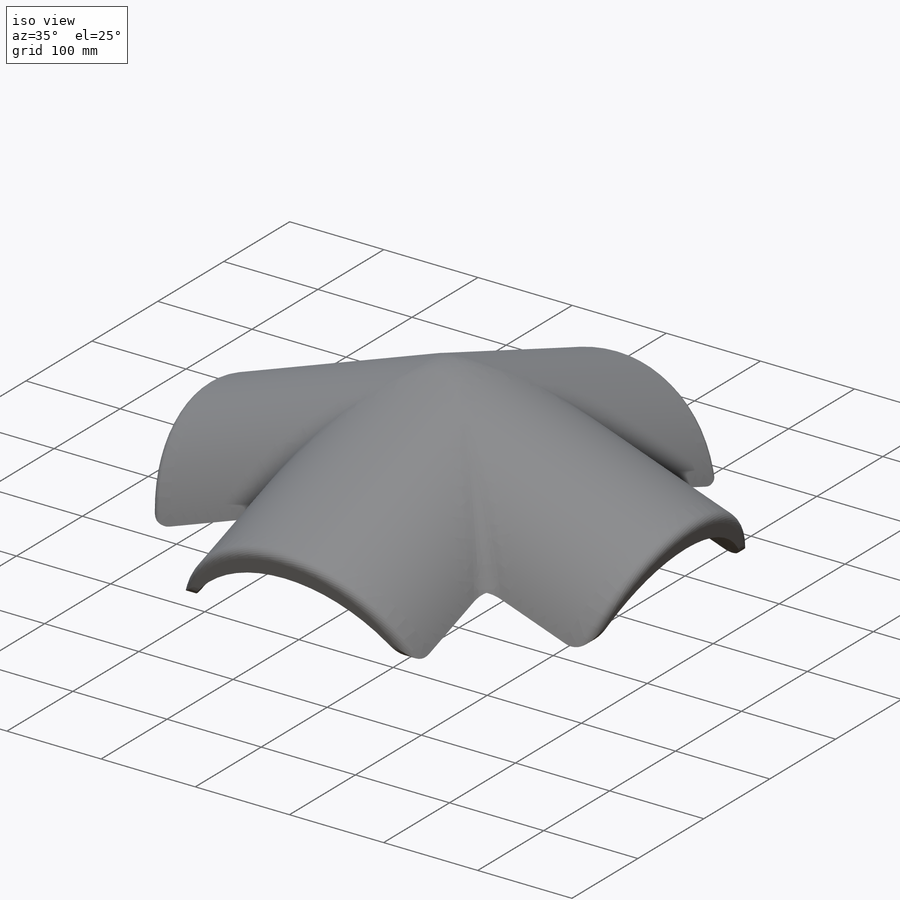
[diagram: iso view]
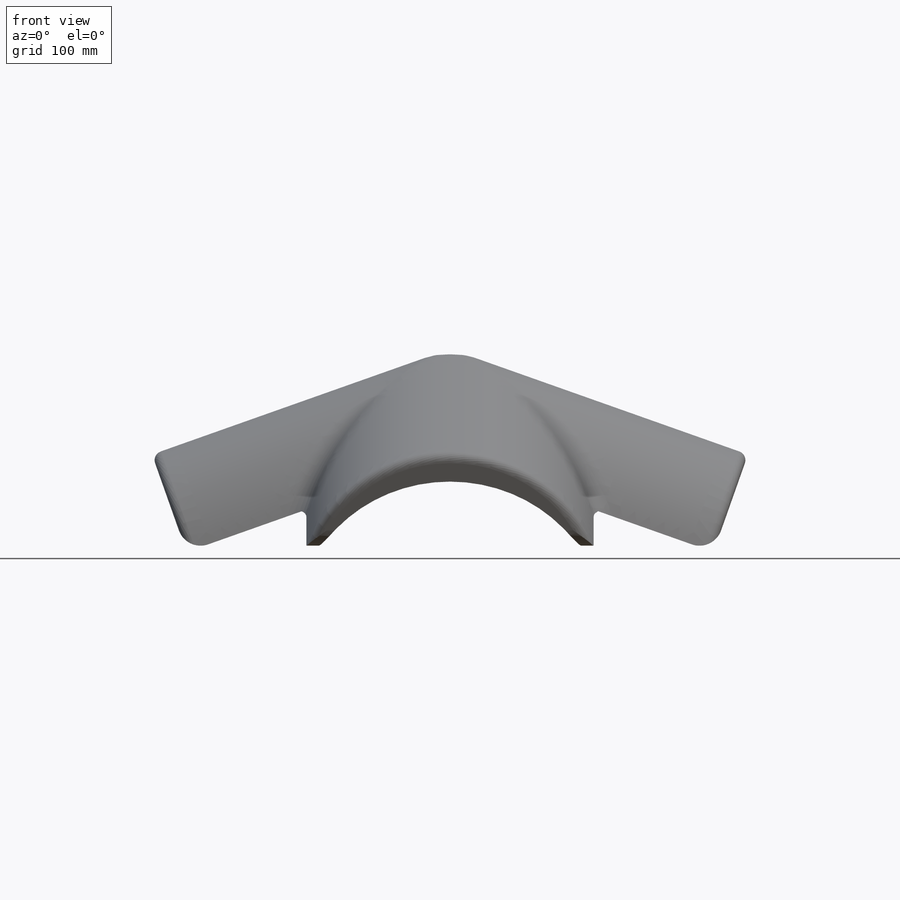
[diagram: front view]
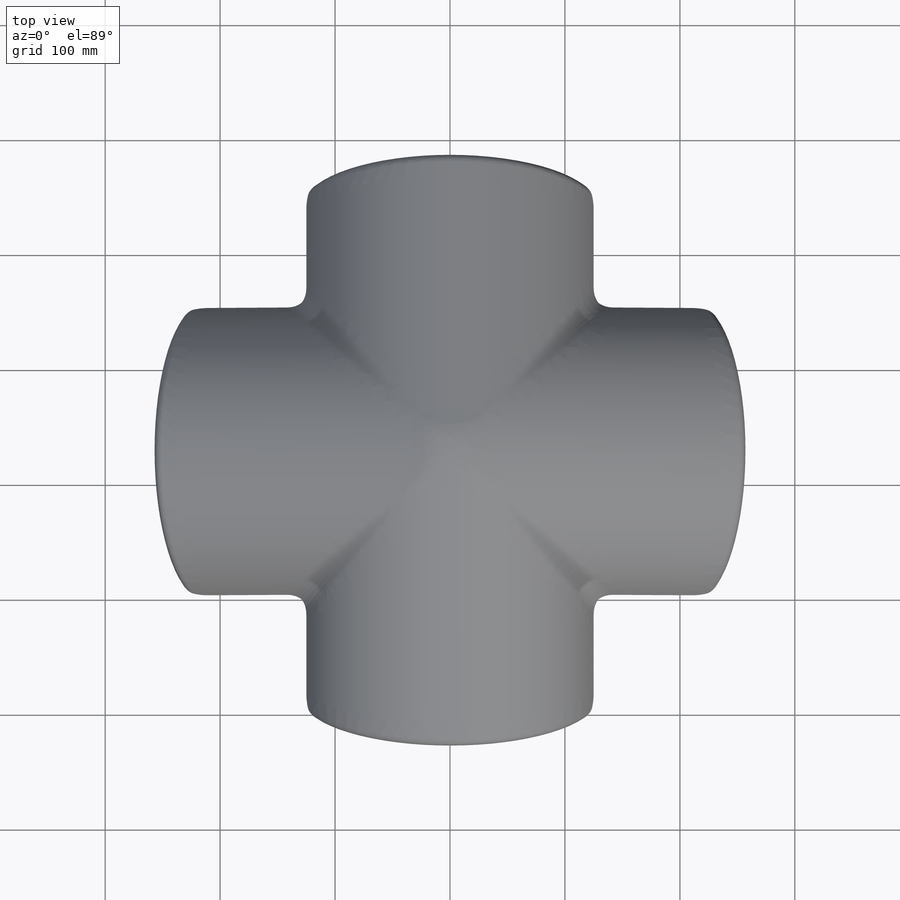
[diagram: top view]
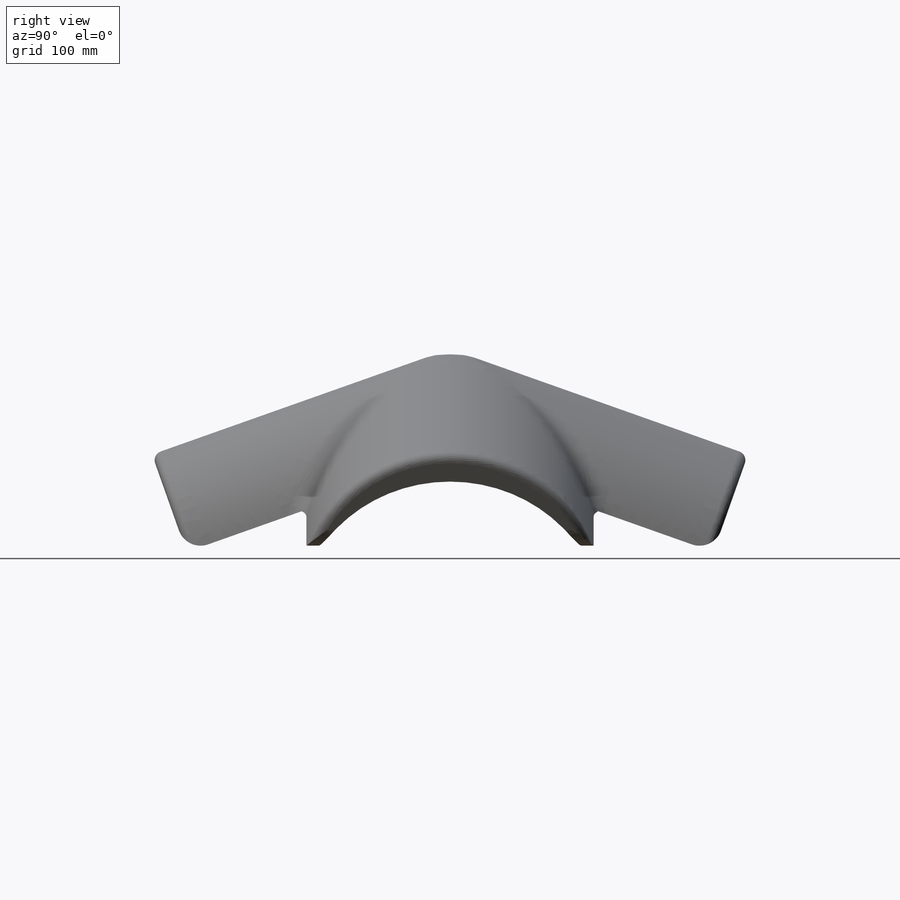
[diagram: right view]
SOLIDWORKS PART (.sldprt)
format: sldprt  version: not decoded by parser v0  size: 898,560 bytes
history: native  units: mm
features: plane x4, sketch x4, fillet x4, material x1, extrude x1, cut_extrude x1, pattern_circular x1, boolean_combine x1 (+14 scaffold rows collapsed)
feature tree (31):
  scaffold x14  (default folders/planes/origin — collapsed)
  material  "Materiál <není určen>"
  plane  "Přední rovina"
  plane  "Horní rovina"
  plane  "Pravá rovina"
  sketch  "Skica26"
  plane  "Rovina1"
  sketch  "Skica5"  dims[c1.D4=~112.687158mm c1.D1=250.0mm c1.D2=240.0mm c2.D2=90.0mm c2.D3=10.0mm c2.D4=25.0mm]
  extrude  "Vysunout5"  Depth=275mm
  sketch  "Skica27"
  sketch  "Skica28"  dims[c1.D1=219.5248mm c2.D1=45.0deg c2.D2=~191.184036mm c3.D2=45.0deg]
  cut_extrude  "Vysunout10"  [1 undecoded]
  fillet  "Zaoblit3"  Radius=20mm
  fillet  "Zaoblit4"  Radius=8mm
  pattern_circular  "Kruhové pole2"  Count=4 Angle=360deg
  boolean_combine  "Kombinovat3"
  fillet  "Zaoblit1"  Radius=20mm
  fillet  "Zaoblit2"  Radius=5mm
decode coverage: 8 of 12 modeling features carry decoded parameters
note: ~ marks probable driven/reference dimensions
note: 1 parameter value undecoded
note: suppression state not decoded; provenance and decode notes live in map.json
